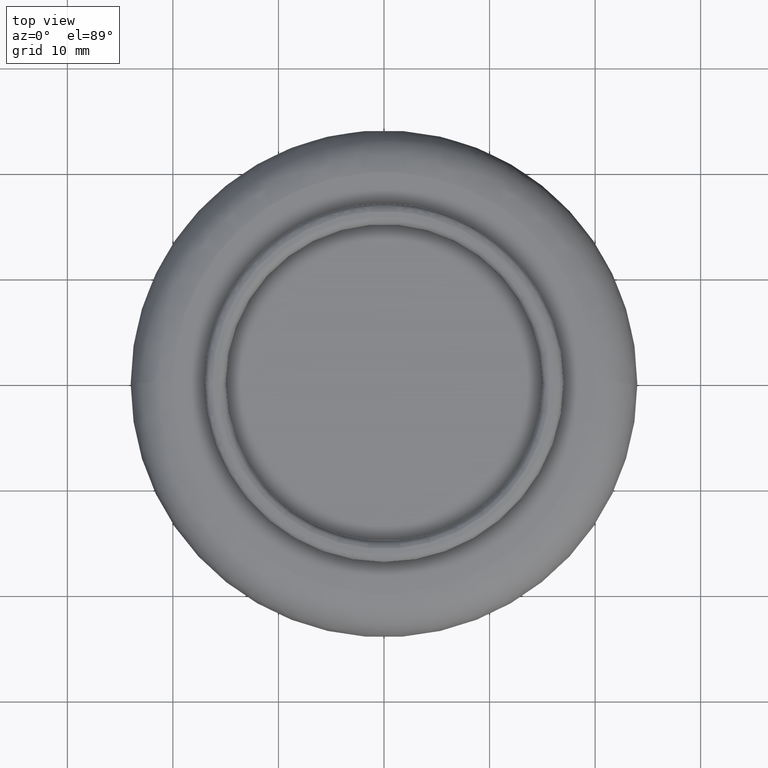
[diagram: clean part render]
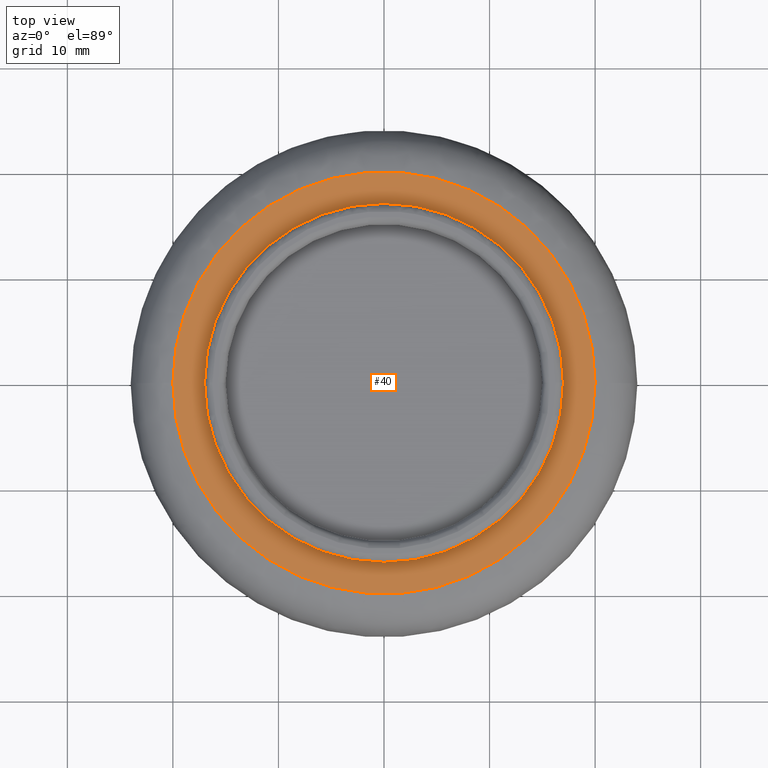
[diagram: same view with one face highlighted and labeled with its STEP entity id]
A machine part, top view. The second image highlights one B-rep face of the part: STEP entity #40.
In plain terms, the highlighted planar face has unit normal (0, 0, -1).
Its self-contained STEP definition (entity closure, byte-faithful):
#40=ADVANCED_FACE('',(#68,#69),#67,.F.);
#67=PLANE('',#345);
#68=FACE_OUTER_BOUND('',#346,.T.);
#69=FACE_BOUND('',#347,.T.);
#342=CARTESIAN_POINT('',(4.60000000000E+001,-4.15692193817E+001,1.32000000000E+001));
#343=DIRECTION('',(0.00000000000E+000,0.00000000000E+000,-1.00000000000E+000));
#344=DIRECTION('',(-1.00000000000E+000,0.00000000000E+000,0.00000000000E+000));
#345=AXIS2_PLACEMENT_3D('',#342,#343,#344);
#346=EDGE_LOOP('',(#650,#651));
#347=EDGE_LOOP('',(#652,#653));
#650=ORIENTED_EDGE('',*,*,#754,.F.);
#651=ORIENTED_EDGE('',*,*,#755,.F.);
#652=ORIENTED_EDGE('',*,*,#756,.T.);
#653=ORIENTED_EDGE('',*,*,#757,.T.);
#754=EDGE_CURVE('',#806,#807,#808,.T.);
#755=EDGE_CURVE('',#807,#806,#814,.T.);
#756=EDGE_CURVE('',#820,#821,#822,.T.);
#757=EDGE_CURVE('',#821,#820,#828,.T.);
#806=VERTEX_POINT('',#1150);
#807=VERTEX_POINT('',#1151);
#808=CIRCLE('',#1155,2.00000000000E+001);
#814=CIRCLE('',#1159,2.00000000000E+001);
#820=VERTEX_POINT('',#1160);
#821=VERTEX_POINT('',#1161);
#822=CIRCLE('',#1165,1.70000000000E+001);
#828=CIRCLE('',#1169,1.70000000000E+001);
#1150=CARTESIAN_POINT('',(2.00000000000E+001,0.00000000000E+000,1.32000000000E+001));
#1151=CARTESIAN_POINT('',(-2.00000000000E+001,-3.63345060057E-015,1.32000000000E+001));
#1152=CARTESIAN_POINT('',(0.00000000000E+000,0.00000000000E+000,1.32000000000E+001));
#1153=DIRECTION('',(0.00000000000E+000,0.00000000000E+000,-1.00000000000E+000));
#1154=DIRECTION('',(-1.00000000000E+000,-5.92118946465E-017,-0.00000000000E+000));
#1155=AXIS2_PLACEMENT_3D('',#1152,#1153,#1154);
#1156=CARTESIAN_POINT('',(0.00000000000E+000,0.00000000000E+000,1.32000000000E+001));
#1157=DIRECTION('',(0.00000000000E+000,0.00000000000E+000,-1.00000000000E+000));
#1158=DIRECTION('',(-1.00000000000E+000,-5.92118946465E-017,-0.00000000000E+000));
#1159=AXIS2_PLACEMENT_3D('',#1156,#1157,#1158);
#1160=CARTESIAN_POINT('',(1.70000000000E+001,2.08183080150E-015,1.32000000000E+001));
#1161=CARTESIAN_POINT('',(-1.70000000000E+001,1.18423789293E-015,1.32000000000E+001));
#1162=CARTESIAN_POINT('',(0.00000000000E+000,0.00000000000E+000,1.32000000000E+001));
#1163=DIRECTION('',(0.00000000000E+000,0.00000000000E+000,-1.00000000000E+000));
#1164=DIRECTION('',(1.00000000000E+000,-0.00000000000E+000,-0.00000000000E+000));
#1165=AXIS2_PLACEMENT_3D('',#1162,#1163,#1164);
#1166=CARTESIAN_POINT('',(0.00000000000E+000,0.00000000000E+000,1.32000000000E+001));
#1167=DIRECTION('',(0.00000000000E+000,0.00000000000E+000,-1.00000000000E+000));
#1168=DIRECTION('',(1.00000000000E+000,-0.00000000000E+000,-0.00000000000E+000));
#1169=AXIS2_PLACEMENT_3D('',#1166,#1167,#1168);